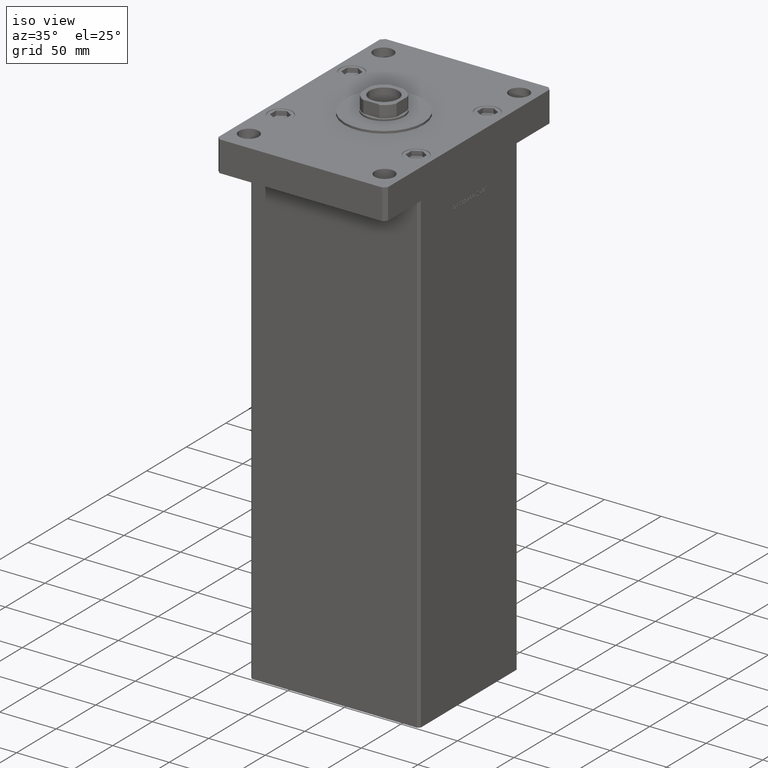
[diagram: clean part render]
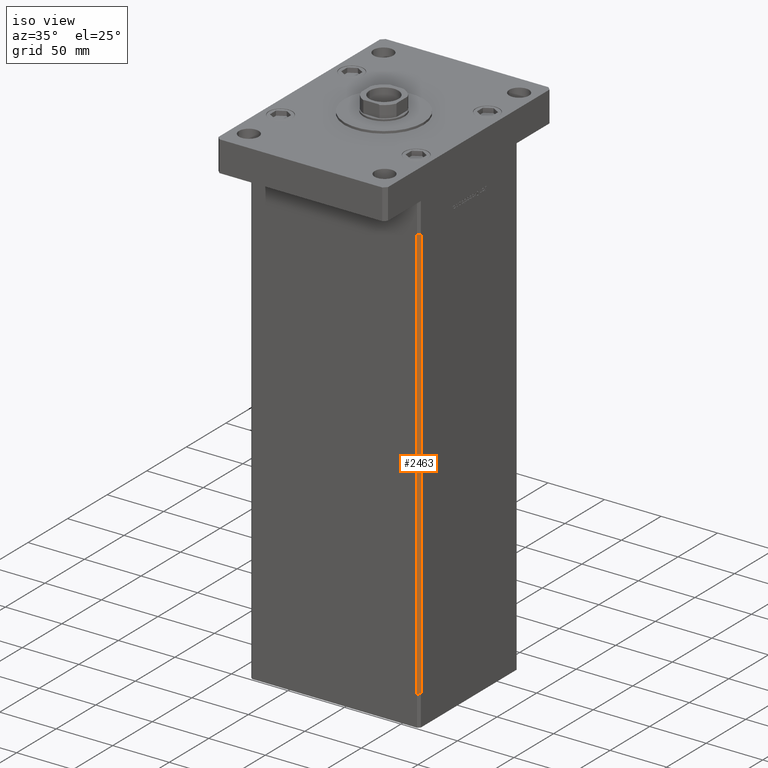
[diagram: same view with one face highlighted and labeled with its STEP entity id]
A machine part, iso view. The second image highlights one B-rep face of the part: STEP entity #2463.
In plain terms, the highlighted planar face has unit normal (0.7071, -0.7071, 0).
Its self-contained STEP definition (entity closure, byte-faithful):
#91 = CARTESIAN_POINT ( 'NONE',  ( 72.99999999999998579, -62.50000000000000000, 367.0000000000000000 ) ) ;
#1647 = ORIENTED_EDGE ( 'NONE', *, *, #51053, .T. ) ;
#2421 = EDGE_CURVE ( 'NONE', #44372, #22595, #34512, .T. ) ;
#2463 = ADVANCED_FACE ( 'NONE', ( #46119 ), #9255, .T. ) ;
#2881 = VERTEX_POINT ( 'NONE', #48908 ) ;
#3476 = CARTESIAN_POINT ( 'NONE',  ( 74.99999999999998579, -60.50000000000000000, 0.000000000000000000 ) ) ;
#4399 = ORIENTED_EDGE ( 'NONE', *, *, #2421, .F. ) ;
#5222 = DIRECTION ( 'NONE',  ( 0.7071067811865475727, -0.7071067811865475727, 0.000000000000000000 ) ) ;
#8993 = CARTESIAN_POINT ( 'NONE',  ( 74.99999999999998579, -60.50000000000000000, 367.0000000000000000 ) ) ;
#9255 = PLANE ( 'NONE',  #40944 ) ;
#11690 = VECTOR ( 'NONE', #33737, 1000.000000000000000 ) ;
#14792 = ORIENTED_EDGE ( 'NONE', *, *, #53123, .F. ) ;
#14866 = LINE ( 'NONE', #22935, #42424 ) ;
#15219 = ORIENTED_EDGE ( 'NONE', *, *, #20477, .T. ) ;
#19963 = DIRECTION ( 'NONE',  ( -0.7071067811865474617, -0.7071067811865474617, 0.000000000000000000 ) ) ;
#20477 = EDGE_CURVE ( 'NONE', #20746, #2881, #38042, .T. ) ;
#20746 = VERTEX_POINT ( 'NONE', #91 ) ;
#22595 = VERTEX_POINT ( 'NONE', #49142 ) ;
#22935 = CARTESIAN_POINT ( 'NONE',  ( 74.99999999999998579, -60.50000000000000000, 367.0000000000000000 ) ) ;
#24871 = CARTESIAN_POINT ( 'NONE',  ( 72.99999999999998579, -62.50000000000000000, 367.0000000000000000 ) ) ;
#25645 = CARTESIAN_POINT ( 'NONE',  ( 74.99999999999998579, -60.50000000000000000, 367.0000000000000000 ) ) ;
#25652 = DIRECTION ( 'NONE',  ( -0.000000000000000000, -0.000000000000000000, -1.000000000000000000 ) ) ;
#27930 = DIRECTION ( 'NONE',  ( -0.7071067811865474617, -0.7071067811865474617, 0.000000000000000000 ) ) ;
#33737 = DIRECTION ( 'NONE',  ( -0.000000000000000000, -0.000000000000000000, -1.000000000000000000 ) ) ;
#34512 = LINE ( 'NONE', #8993, #11690 ) ;
#36741 = CARTESIAN_POINT ( 'NONE',  ( 74.99999999999998579, -60.50000000000000000, 367.0000000000000000 ) ) ;
#38042 = LINE ( 'NONE', #24871, #39615 ) ;
#39076 = DIRECTION ( 'NONE',  ( 0.7071067811865474617, 0.7071067811865474617, 0.000000000000000000 ) ) ;
#39615 = VECTOR ( 'NONE', #25652, 1000.000000000000000 ) ;
#40944 = AXIS2_PLACEMENT_3D ( 'NONE', #25645, #5222, #39076 ) ;
#42424 = VECTOR ( 'NONE', #19963, 1000.000000000000114 ) ;
#43494 = EDGE_LOOP ( 'NONE', ( #14792, #4399, #1647, #15219 ) ) ;
#44372 = VERTEX_POINT ( 'NONE', #36741 ) ;
#45027 = VECTOR ( 'NONE', #27930, 1000.000000000000114 ) ;
#45170 = LINE ( 'NONE', #3476, #45027 ) ;
#46119 = FACE_OUTER_BOUND ( 'NONE', #43494, .T. ) ;
#48908 = CARTESIAN_POINT ( 'NONE',  ( 72.99999999999998579, -62.50000000000000000, 0.000000000000000000 ) ) ;
#49142 = CARTESIAN_POINT ( 'NONE',  ( 74.99999999999998579, -60.50000000000000000, 0.000000000000000000 ) ) ;
#51053 = EDGE_CURVE ( 'NONE', #44372, #20746, #14866, .T. ) ;
#53123 = EDGE_CURVE ( 'NONE', #22595, #2881, #45170, .T. ) ;